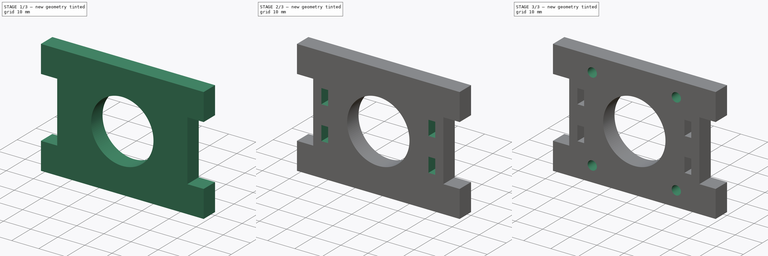
[diagram: build sequence overview — one tinted view per stage of 3, left to right]
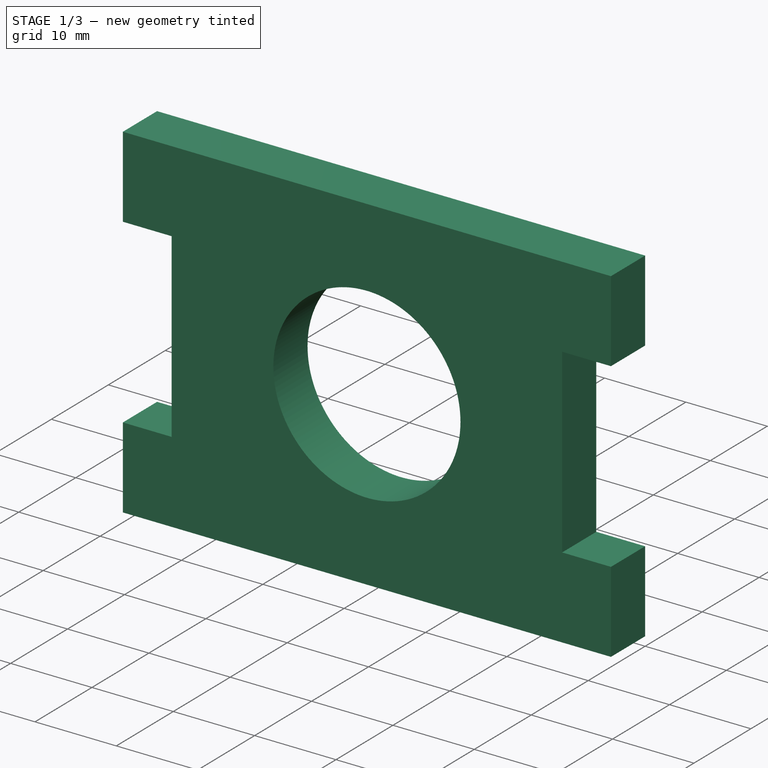
[diagram: stage 1 of 3 — iso view after this stage's code; geometry added in this stage tinted green]
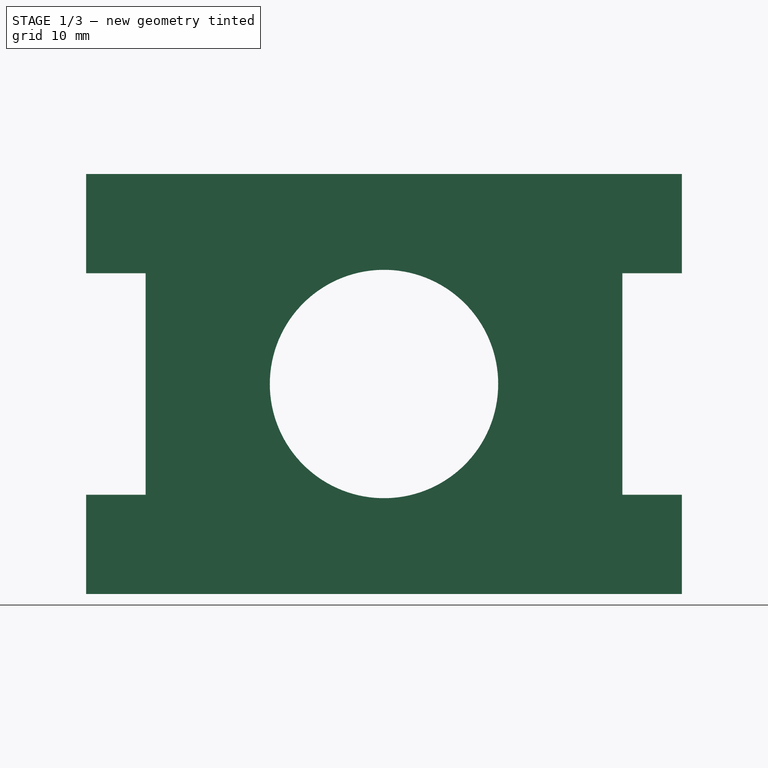
[diagram: stage 1 of 3 — front view after this stage's code; geometry added in this stage tinted green]
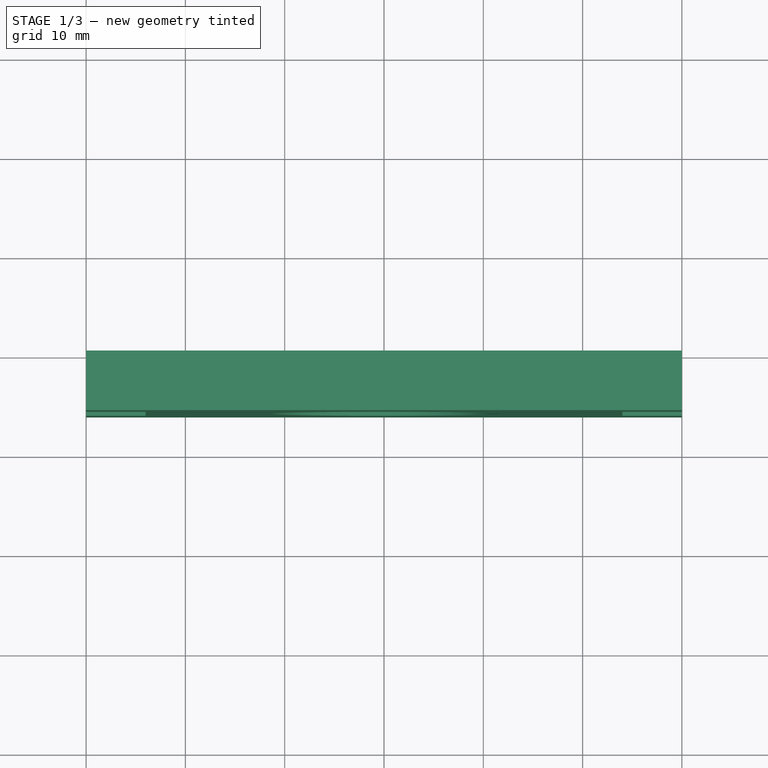
[diagram: stage 1 of 3 — top view after this stage's code; geometry added in this stage tinted green]
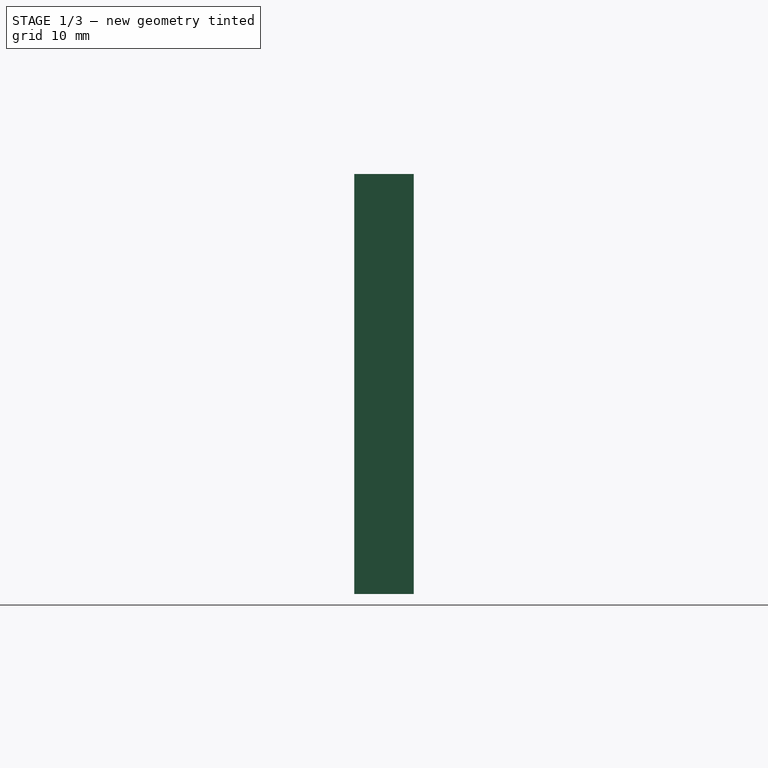
[diagram: stage 1 of 3 — right view after this stage's code; geometry added in this stage tinted green]
FCSTD DOCUMENT  (FreeCAD 0.19R24291 (Git))
Label: Support_moteur
License: All rights reserved
LicenseURL: http://en.wikipedia.org/wiki/All_rights_reserved
objects: Sketcher::SketchObject×4, PartDesign::Pocket×3, PartDesign::Pad×1, PartDesign::Mirrored×1, PartDesign::PolarPattern×1, PartDesign::Body×1, Part::Part2DObjectPython×1
note: 16 computed .brp shape members not serialized (recipe doc carries the construction recipe); baked Part::Feature solids carry a one-line shape summary decoded from their .brp

FEATURE [Sketcher::SketchObject] Sketch  label="base_support001"
  FullyConstrained = true
  MapMode = 5
  Placement = pos=(0,0,0) rot=(1,0,0;1.5708rad)
  Support = -> [XZ_Plane]
  sketch-geometry (14):
    g0: LineSegment StartX=-30 StartY=21.15 StartZ=0 EndX=30 EndY=21.15 EndZ=0
    g1: LineSegment StartX=30 StartY=21.15 StartZ=0 EndX=30 EndY=11.15 EndZ=0
    g2: LineSegment StartX=30 StartY=11.15 StartZ=0 EndX=24 EndY=11.15 EndZ=0
    g3: LineSegment StartX=24 StartY=11.15 StartZ=0 EndX=24 EndY=-11.15 EndZ=0
    g4: LineSegment StartX=24 StartY=-11.15 StartZ=0 EndX=30 EndY=-11.15 EndZ=0
    g5: LineSegment StartX=30 StartY=-11.15 StartZ=0 EndX=30 EndY=-21.15 EndZ=0
    g6: LineSegment StartX=30 StartY=-21.15 StartZ=0 EndX=-30 EndY=-21.15 EndZ=0
    g7: LineSegment StartX=-30 StartY=-21.15 StartZ=0 EndX=-30 EndY=-11.15 EndZ=0
    g8: LineSegment StartX=-30 StartY=-11.15 StartZ=0 EndX=-24 EndY=-11.15 EndZ=0
    g9: LineSegment StartX=-24 StartY=-11.15 StartZ=0 EndX=-24 EndY=11.15 EndZ=0
    g10: LineSegment StartX=-24 StartY=11.15 StartZ=0 EndX=-30 EndY=11.15 EndZ=0
    g11: LineSegment StartX=-30 StartY=11.15 StartZ=0 EndX=-30 EndY=21.15 EndZ=0
    g12: LineSegment StartX=-30 StartY=21.15 StartZ=0 EndX=30 EndY=-21.15 EndZ=0
    g13: LineSegment StartX=-30 StartY=-21.15 StartZ=0 EndX=30 EndY=21.15 EndZ=0
  constraints (40):
    c: Horizontal(g0)
    c: Coincident(g0,g1)
    c: Vertical(g1)
    c: Coincident(g1,g2)
    c: Horizontal(g2)
    c: Coincident(g2,g3)
    c: Vertical(g3)
    c: Coincident(g3,g4)
    c: Horizontal(g4)
    c: Coincident(g4,g5)
    c: Vertical(g5)
    c: Coincident(g5,g6)
    c: Horizontal(g6)
    c: Coincident(g6,g7)
    c: Vertical(g7)
    c: Coincident(g7,g8)
    c: Horizontal(g8)
    c: Coincident(g8,g9)
    c: Vertical(g9)
    c: Coincident(g9,g10)
    c: Horizontal(g10)
    c: Coincident(g10,g11)
    c: Coincident(g11,g0)
    c: Vertical(g11)
    c: DistanceY(g6,g0) = 42.3
    c: DistanceX(g0,g0) = 60
    c: Coincident(g12,g0)
    c: Coincident(g12,g5)
    c: Coincident(g13,g6)
    c: Coincident(g13,g0)
    c: PointOnObject(g-1,g13)
    c: PointOnObject(g-1,g12)
    c: DistanceY(g1,g0) = 10
    c: Equal(g1,g5)
    c: Equal(g5,g7)
    c: Equal(g7,g11)
    c: DistanceX(g4,g4) = 6
    c: Equal(g4,g2)
    c: Equal(g2,g10)
    c: Equal(g10,g8)
FEATURE [PartDesign::Pad] Pad  label="base_support"
  Direction = (1,1,1)
  Length = 6
  Length2 = 100
  Placement = pos=(0,0,0) rot=(1,0,0;1.5708rad)
  Profile = -> Sketch
  Type = 0
FEATURE [Sketcher::SketchObject] Sketch001  label="trou_axe"
  FullyConstrained = true
  MapMode = 5
  Placement = pos=(0,-6,2.7e-15) rot=(1,0,0;1.5708rad)
  Support = -> [Pad]
  sketch-geometry (1):
    g0: Circle CenterX=0 CenterY=0 CenterZ=0 NormalX=0 NormalY=0 NormalZ=1 AngleXU=0 Radius=11.5
  constraints (2):
    c: Coincident(g0,g-1)
    c: Radius(g0) = 11.5
FEATURE [PartDesign::Pocket] Pocket  label="trou_axe001"
  BaseFeature = -> Pad
  Length = 5
  Length2 = 100
  Placement = pos=(0,0,0) rot=(1,0,0;1.5708rad)
  Profile = -> Sketch001
  Type = 1
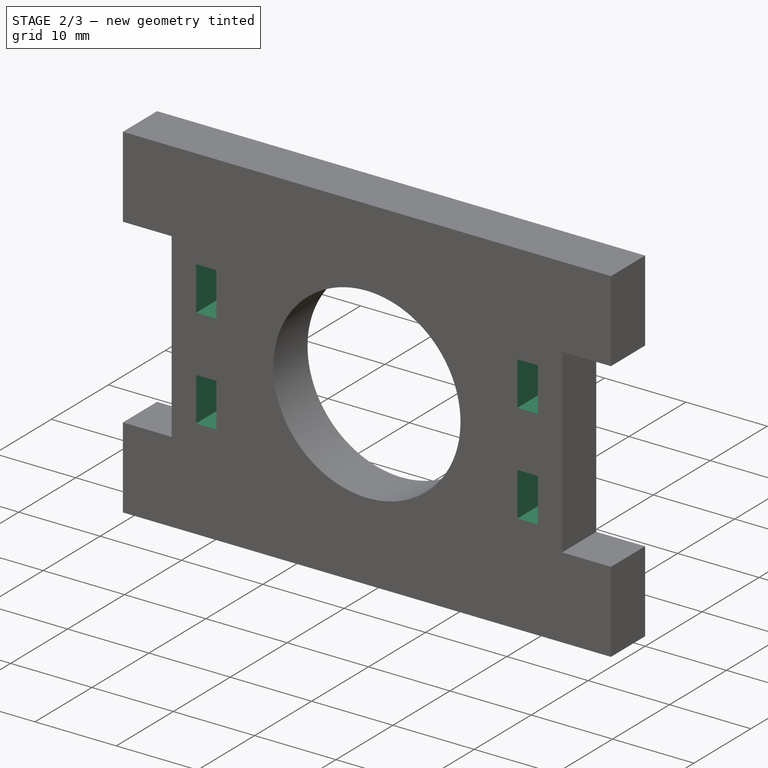
[diagram: stage 2 of 3 — iso view after this stage's code; geometry added in this stage tinted green]
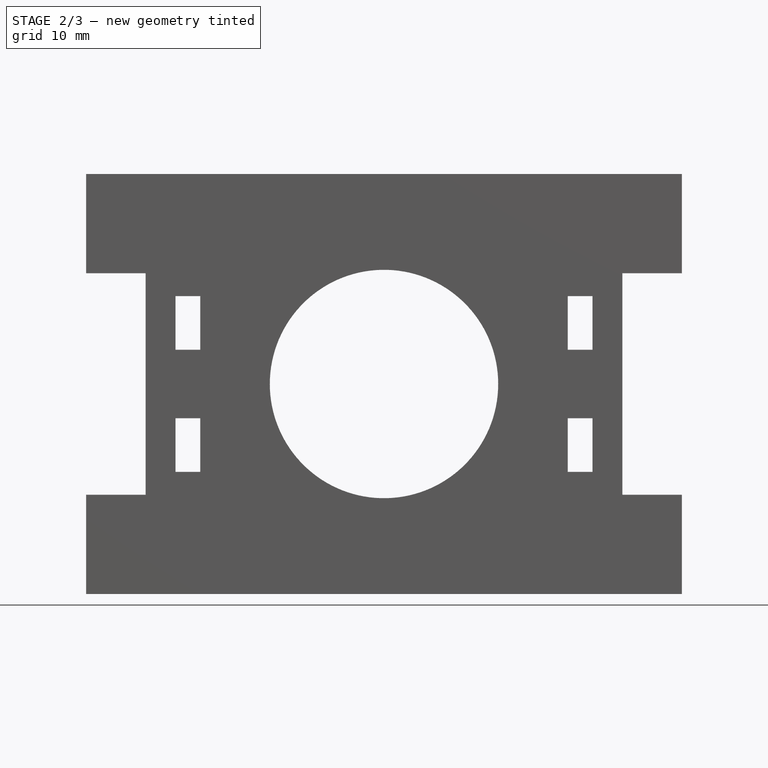
[diagram: stage 2 of 3 — front view after this stage's code; geometry added in this stage tinted green]
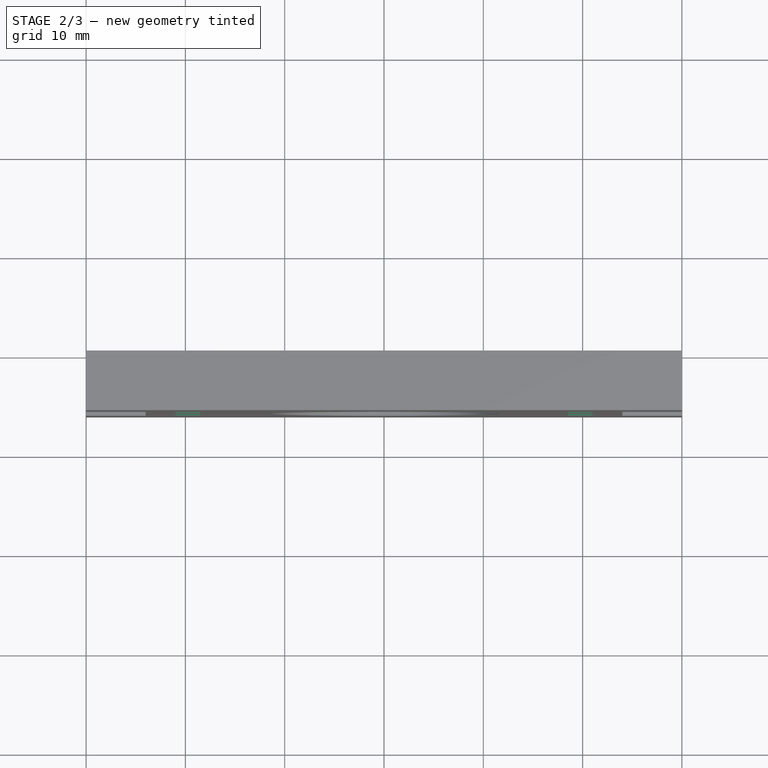
[diagram: stage 2 of 3 — top view after this stage's code; geometry added in this stage tinted green]
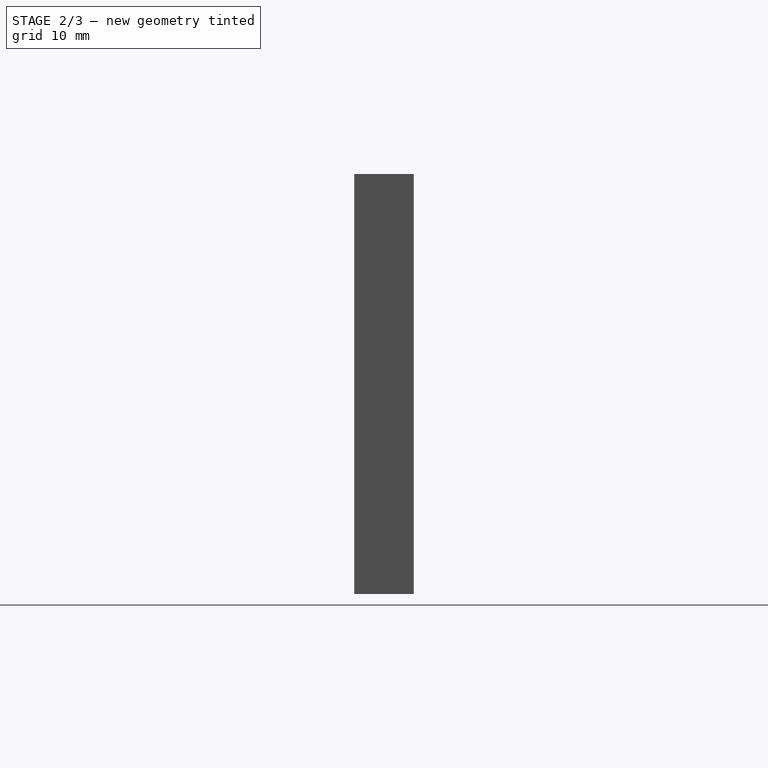
[diagram: stage 2 of 3 — right view after this stage's code; geometry added in this stage tinted green]
FEATURE [Sketcher::SketchObject] Sketch002
  ExternalGeometry = -> [Pocket]
  FullyConstrained = true
  MapMode = 5
  Placement = pos=(0,-6,2.7e-15) rot=(1,0,0;1.5708rad)
  Support = -> [Pocket]
  sketch-geometry (14):
    g0: LineSegment StartX=-21 StartY=3.45 StartZ=0 EndX=-18.5 EndY=3.45 EndZ=0
    g1: LineSegment StartX=-18.5 StartY=3.45 StartZ=0 EndX=-18.5 EndY=8.85 EndZ=0
    g2: LineSegment StartX=-18.5 StartY=8.85 StartZ=0 EndX=-21 EndY=8.85 EndZ=0
    g3: LineSegment StartX=-21 StartY=8.85 StartZ=0 EndX=-21 EndY=3.45 EndZ=0
    g4: LineSegment StartX=-18.5 StartY=3.45 StartZ=0 EndX=-21 EndY=8.85 EndZ=0
    g5: LineSegment StartX=-21 StartY=3.45 StartZ=0 EndX=-18.5 EndY=8.85 EndZ=0
    g6: GeomPoint X=-19.75 Y=6.15 Z=0
    g7: LineSegment StartX=-21 StartY=-3.45 StartZ=0 EndX=-18.5 EndY=-3.45 EndZ=0
    g8: LineSegment StartX=-18.5 StartY=-3.45 StartZ=0 EndX=-18.5 EndY=-8.85 EndZ=0
    g9: LineSegment StartX=-18.5 StartY=-8.85 StartZ=0 EndX=-21 EndY=-8.85 EndZ=0
    g10: LineSegment StartX=-21 StartY=-8.85 StartZ=0 EndX=-21 EndY=-3.45 EndZ=0
    g11: LineSegment StartX=-18.5 StartY=-3.45 StartZ=0 EndX=-21 EndY=-8.85 EndZ=0
    g12: LineSegment StartX=-21 StartY=-3.45 StartZ=0 EndX=-18.5 EndY=-8.85 EndZ=0
    g13: GeomPoint X=-19.75 Y=-6.15 Z=0
  constraints (36):
    c: Coincident(g0,g1)
    c: Coincident(g1,g2)
    c: Coincident(g2,g3)
    c: Coincident(g3,g0)
    c: Horizontal(g0)
    c: Horizontal(g2)
    c: Vertical(g1)
    c: Vertical(g3)
    c: DistanceY(g1,g1) = 5.4
    c: DistanceX(g2,g2) = 2.5
    c: DistanceX(g-3,g2) = 3
    c: Coincident(g4,g0)
    c: Coincident(g4,g2)
    c: Coincident(g5,g0)
    c: Coincident(g5,g1)
    c: PointOnObject(g6,g5)
    c: PointOnObject(g6,g4)
    c: DistanceY(g6,g-3) = 5
    c: Coincident(g7,g8)
    c: Coincident(g8,g9)
    c: Coincident(g9,g10)
    c: Coincident(g10,g7)
    c: Horizontal(g7)
    c: Horizontal(g9)
    c: Vertical(g8)
    c: Vertical(g10)
    c: Coincident(g11,g7)
    c: Coincident(g11,g9)
    c: Coincident(g12,g7)
    c: Coincident(g12,g8)
    c: PointOnObject(g13,g12)
    c: PointOnObject(g13,g11)
    c: DistanceY(g8,g8) = 5.4
    c: DistanceX(g9,g9) = 2.5
    c: DistanceY(g-3,g13) = 5
    c: DistanceX(g-3,g9) = 3
FEATURE [PartDesign::Pocket] Pocket001  label="trou_sup_liaison"
  BaseFeature = -> Pocket
  Length = 5
  Length2 = 100
  Placement = pos=(0,0,0) rot=(1,0,0;1.5708rad)
  Profile = -> Sketch002
  Type = 1
FEATURE [PartDesign::Mirrored] Mirrored  label="trou_sup_mirrored"
  BaseFeature = -> Pocket001
  MirrorPlane = -> Sketch002 [V_Axis]
  Originals = -> [Pocket001]
  Placement = pos=(0,0,0) rot=(1,0,0;1.5708rad)
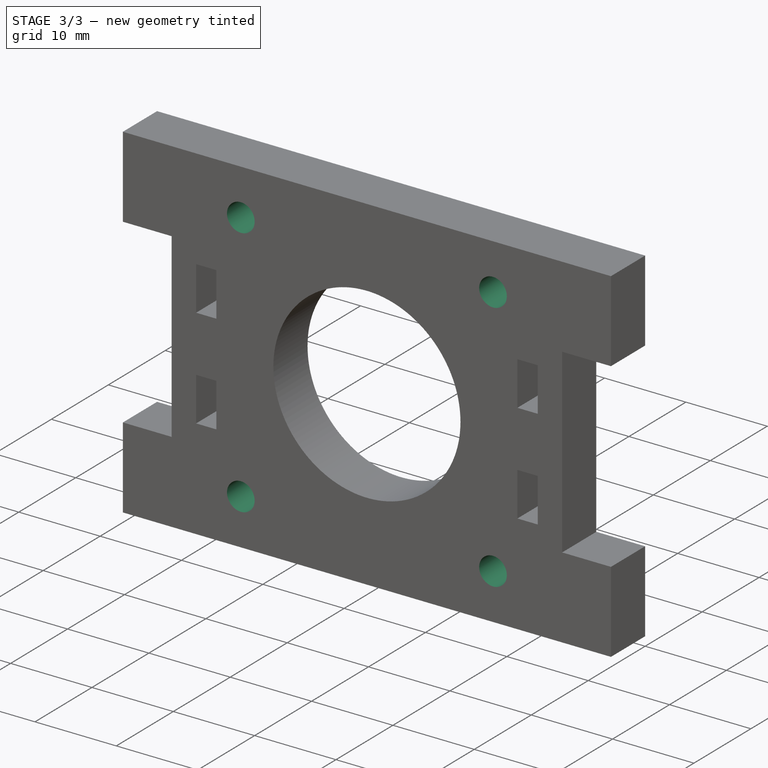
[diagram: stage 3 of 3 — iso view after this stage's code; geometry added in this stage tinted green]
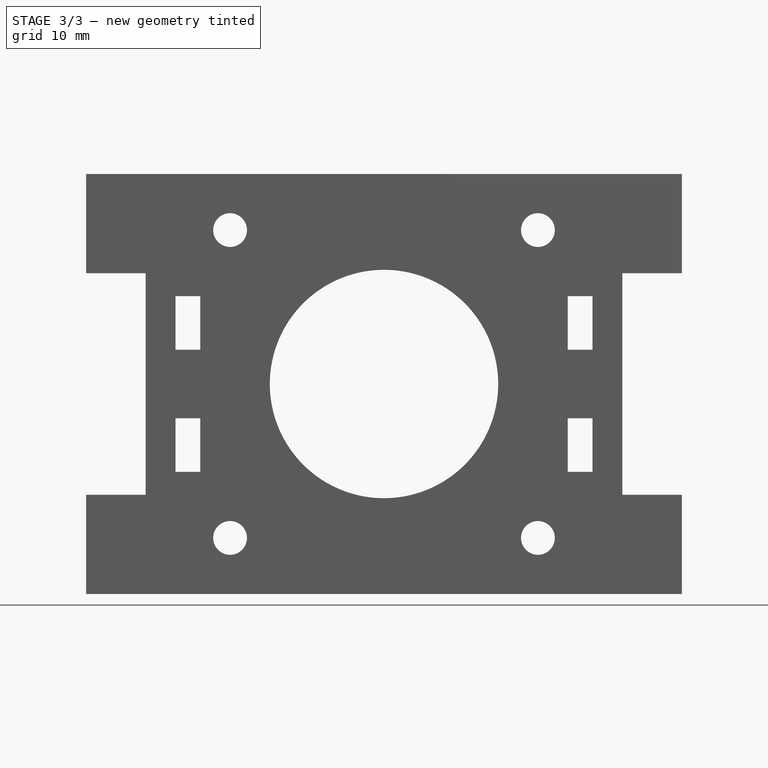
[diagram: stage 3 of 3 — front view after this stage's code; geometry added in this stage tinted green]
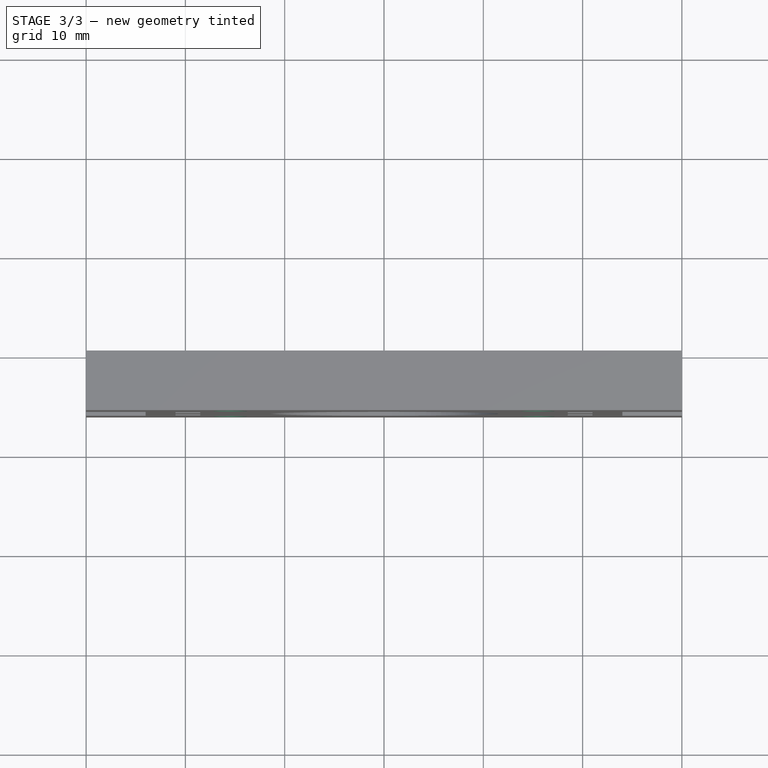
[diagram: stage 3 of 3 — top view after this stage's code; geometry added in this stage tinted green]
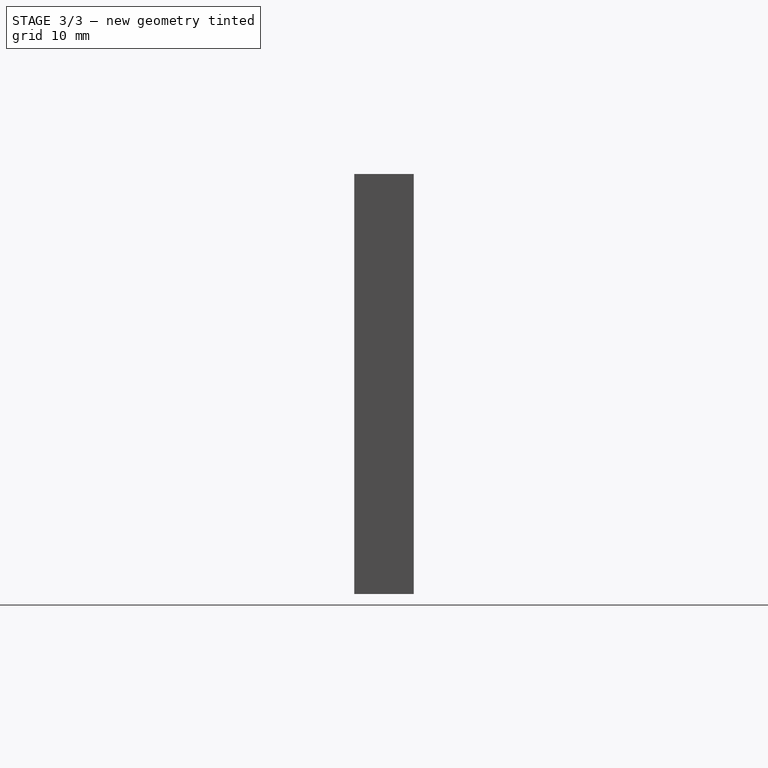
[diagram: stage 3 of 3 — right view after this stage's code; geometry added in this stage tinted green]
FEATURE [Sketcher::SketchObject] Sketch003
  FullyConstrained = true
  MapMode = 5
  Placement = pos=(0,-6,2.7e-15) rot=(1,0,0;1.5708rad)
  Support = -> [Mirrored]
  sketch-geometry (7):
    g0: LineSegment StartX=-21.15 StartY=-21.15 StartZ=0 EndX=21.15 EndY=-21.15 EndZ=0
    g1: LineSegment StartX=21.15 StartY=-21.15 StartZ=0 EndX=21.15 EndY=21.15 EndZ=0
    g2: LineSegment StartX=21.15 StartY=21.15 StartZ=0 EndX=-21.15 EndY=21.15 EndZ=0
    g3: LineSegment StartX=-21.15 StartY=21.15 StartZ=0 EndX=-21.15 EndY=-21.15 EndZ=0
    g4: LineSegment StartX=-21.15 StartY=21.15 StartZ=0 EndX=21.15 EndY=-21.15 EndZ=0
    g5: LineSegment StartX=-21.15 StartY=-21.15 StartZ=0 EndX=21.15 EndY=21.15 EndZ=0
    g6: Circle CenterX=15.5 CenterY=15.5 CenterZ=0 NormalX=0 NormalY=0 NormalZ=1 AngleXU=0 Radius=1.7
  constraints (19):
    c: Coincident(g0,g1)
    c: Coincident(g1,g2)
    c: Coincident(g2,g3)
    c: Coincident(g3,g0)
    c: Horizontal(g0)
    c: Horizontal(g2)
    c: Vertical(g1)
    c: Vertical(g3)
    c: Coincident(g4,g2)
    c: Coincident(g4,g0)
    c: Coincident(g5,g0)
    c: Coincident(g5,g1)
    c: PointOnObject(g-1,g5)
    c: PointOnObject(g-1,g4)
    c: DistanceX(g2,g2) = 42.3
    c: Equal(g2,g1)
    c: PointOnObject(g6,g5)
    c: Radius(g6) = 1.7
    c: DistanceY(g-1,g6) = 15.5
FEATURE [PartDesign::Pocket] Pocket002  label="trou_m3"
  BaseFeature = -> Mirrored
  Length = 5
  Length2 = 100
  Placement = pos=(0,0,0) rot=(1,0,0;1.5708rad)
  Profile = -> Sketch003
  Type = 1
FEATURE [PartDesign::PolarPattern] PolarPattern  label="trou_m3_pattern"
  Angle = 360
  Axis = -> Sketch003 [N_Axis]
  BaseFeature = -> Pocket002
  Occurrences = 4
  Originals = -> [Pocket002]
  Placement = pos=(0,0,0) rot=(1,0,0;1.5708rad)
FEATURE [PartDesign::Body] Body
  Group = -> [Sketch,Pad,Sketch001,Pocket,Sketch002,Pocket001,Mirrored,Sketch003,Pocket002,PolarPattern]
  Origin = -> Origin
  Tip = -> PolarPattern
FEATURE [Part::Part2DObjectPython] Shape2DView  # Draft 2D object (typed FeaturePython)
  Base = -> Body
  FuseArch = false
  HiddenLines = false
  InPlace = true
  Projection = (0,-1,0)
  ProjectionMode = 0
  SegmentLength = 0.05
  Tessellation = false
  VisibleOnly = false
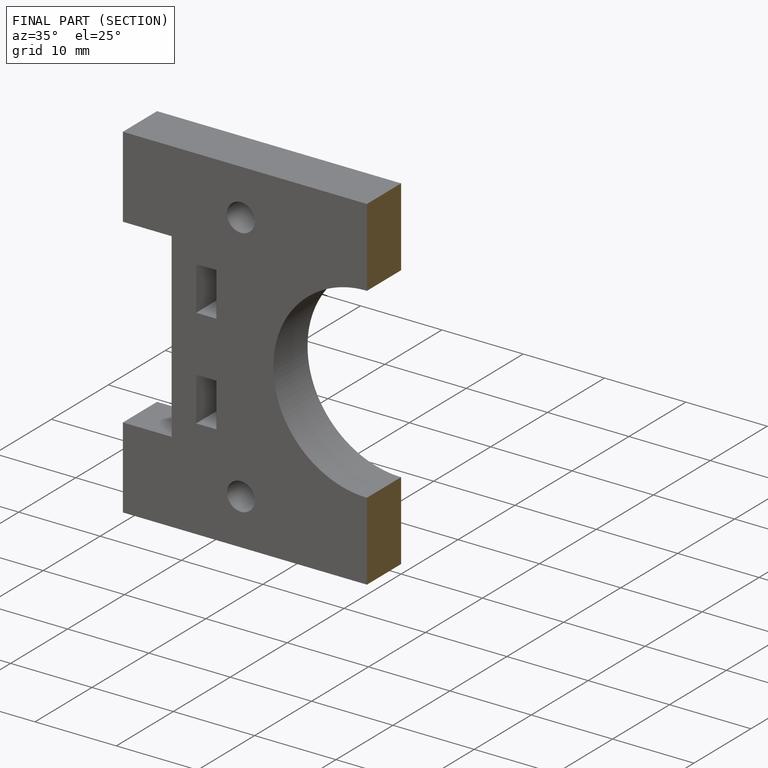
[diagram: finished part — half-section view (interior)]
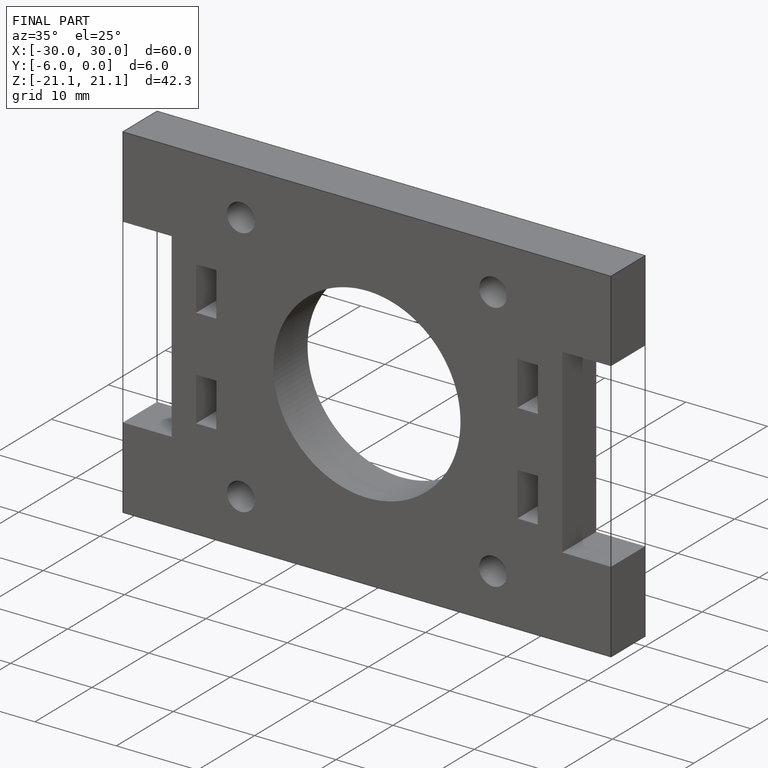
[diagram: finished part — iso view with bounding-box wireframe]
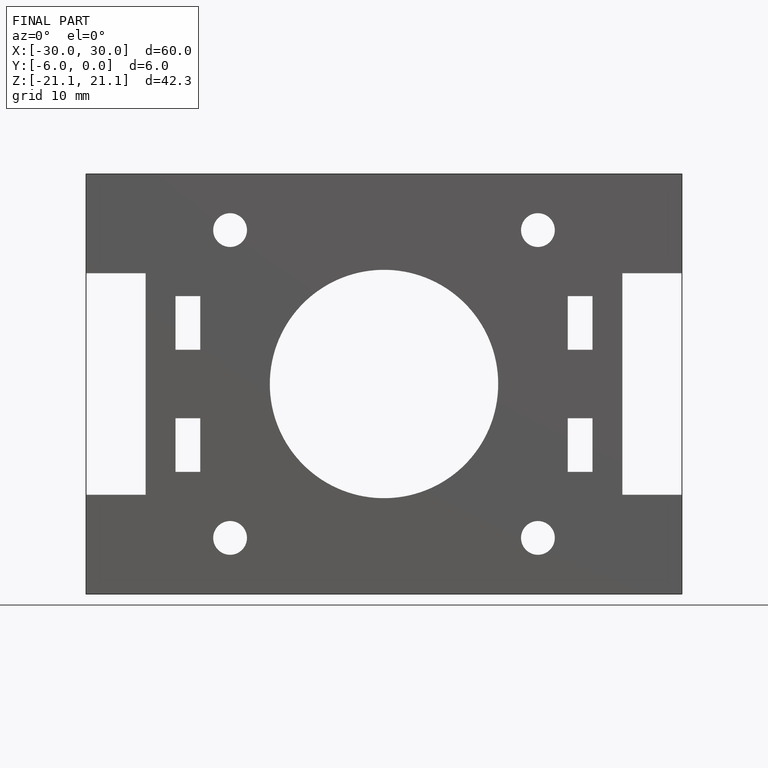
[diagram: finished part — front view with bounding-box wireframe]
